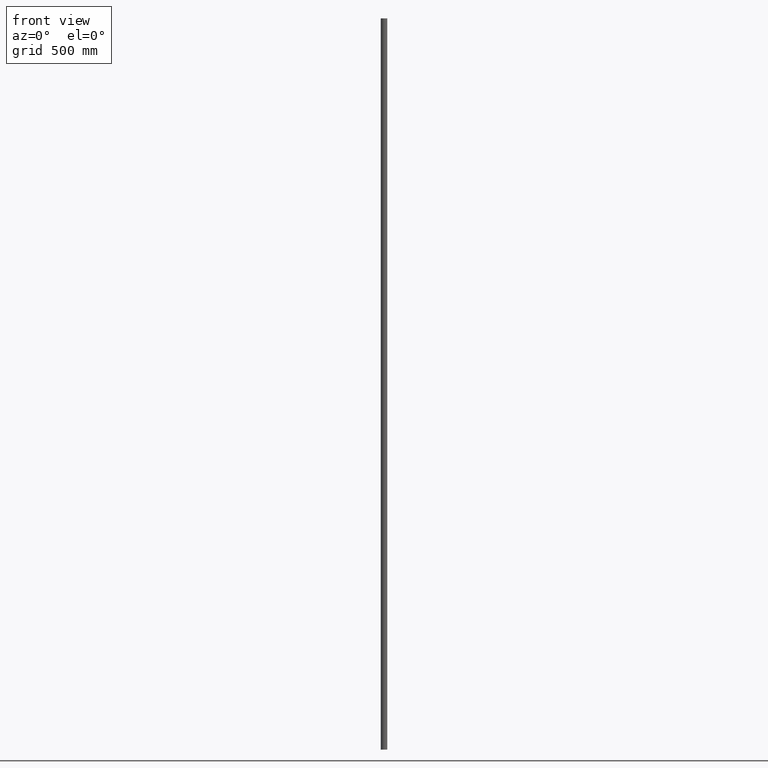
[diagram: clean part render]
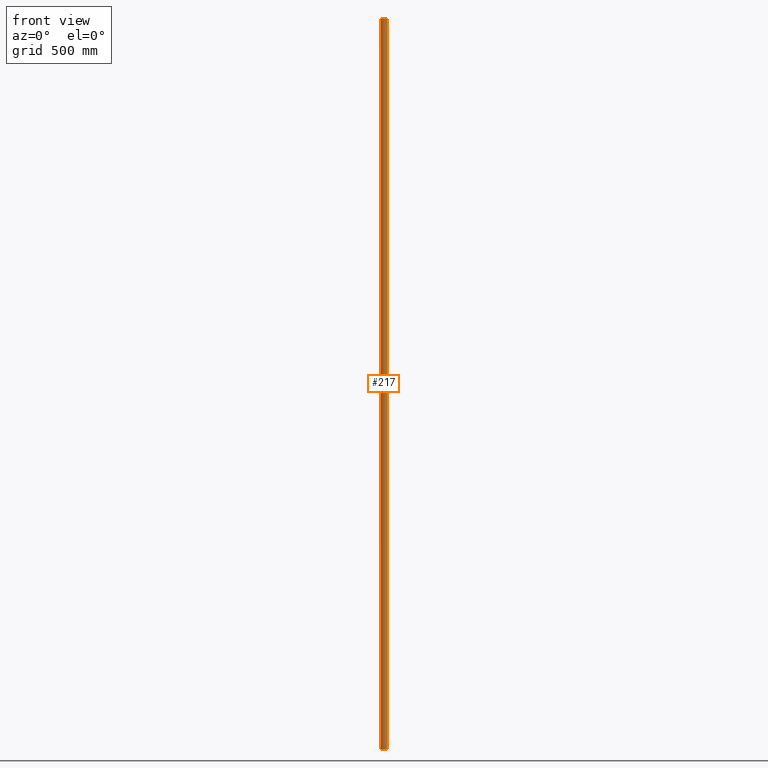
[diagram: same view with one face highlighted and labeled with its STEP entity id]
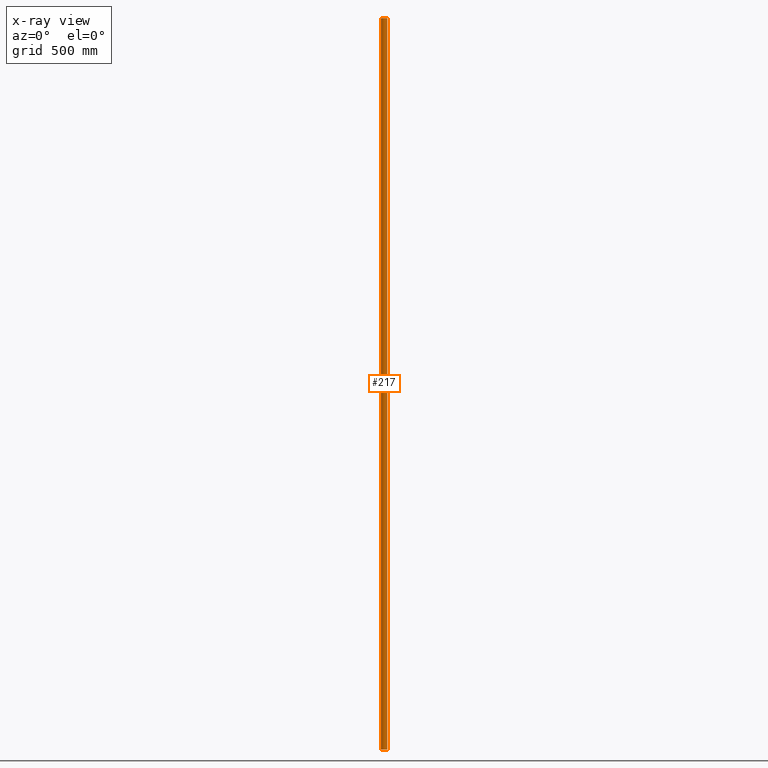
[diagram: x-ray of the same camera — body ghosted, the highlighted face saturated]
A machine part, front view. The second image highlights one B-rep face of the part: STEP entity #217.
The next image is the same camera in x-ray: the body ghosted, the highlighted face saturated — about 0% of this face is hidden behind the body in this view.
In plain terms, the highlighted cylindrical surface (bore or boss wall) has radius 13.45 mm, axis along (-0, -0, -1).
Its self-contained STEP definition (entity closure, byte-faithful):
#217 = ADVANCED_FACE ( 'NONE', ( #1509, #9623 ), #12132, .T. ) ;
#915 = DIRECTION ( 'NONE',  ( 0.000000000000000000, 0.000000000000000000, 1.000000000000000000 ) ) ;
#1509 = FACE_OUTER_BOUND ( 'NONE', #2976, .T. ) ;
#1662 = DIRECTION ( 'NONE',  ( 0.000000000000000000, 0.000000000000000000, 1.000000000000000000 ) ) ;
#1683 = CARTESIAN_POINT ( 'NONE',  ( 0.000000000000000000, 0.000000000000000000, 1500.000000000000000 ) ) ;
#2976 = EDGE_LOOP ( 'NONE', ( #7493 ) ) ;
#3125 = CARTESIAN_POINT ( 'NONE',  ( 13.44999999999999929, 0.000000000000000000, 1500.000000000000000 ) ) ;
#3166 = CARTESIAN_POINT ( 'NONE',  ( 13.44999999999999929, 0.000000000000000000, -1500.000000000000000 ) ) ;
#3728 = AXIS2_PLACEMENT_3D ( 'NONE', #13617, #915, #7303 ) ;
#3826 = AXIS2_PLACEMENT_3D ( 'NONE', #1683, #4830, #9070 ) ;
#4111 = CIRCLE ( 'NONE', #3728, 13.44999999999999929 ) ;
#4830 = DIRECTION ( 'NONE',  ( -0.000000000000000000, -0.000000000000000000, -1.000000000000000000 ) ) ;
#6303 = EDGE_CURVE ( 'NONE', #12017, #12017, #13198, .T. ) ;
#7303 = DIRECTION ( 'NONE',  ( 1.000000000000000000, 0.000000000000000000, 0.000000000000000000 ) ) ;
#7361 = EDGE_LOOP ( 'NONE', ( #13427 ) ) ;
#7493 = ORIENTED_EDGE ( 'NONE', *, *, #10563, .F. ) ;
#9070 = DIRECTION ( 'NONE',  ( -1.000000000000000000, 0.000000000000000000, 0.000000000000000000 ) ) ;
#9623 = FACE_OUTER_BOUND ( 'NONE', #7361, .T. ) ;
#10151 = DIRECTION ( 'NONE',  ( 1.000000000000000000, 0.000000000000000000, 0.000000000000000000 ) ) ;
#10563 = EDGE_CURVE ( 'NONE', #11673, #11673, #4111, .T. ) ;
#11673 = VERTEX_POINT ( 'NONE', #3125 ) ;
#12017 = VERTEX_POINT ( 'NONE', #3166 ) ;
#12132 = CYLINDRICAL_SURFACE ( 'NONE', #3826, 13.44999999999999929 ) ;
#12578 = AXIS2_PLACEMENT_3D ( 'NONE', #13386, #1662, #10151 ) ;
#13198 = CIRCLE ( 'NONE', #12578, 13.44999999999999929 ) ;
#13386 = CARTESIAN_POINT ( 'NONE',  ( 0.000000000000000000, 0.000000000000000000, -1500.000000000000000 ) ) ;
#13427 = ORIENTED_EDGE ( 'NONE', *, *, #6303, .T. ) ;
#13617 = CARTESIAN_POINT ( 'NONE',  ( 0.000000000000000000, 0.000000000000000000, 1500.000000000000000 ) ) ;